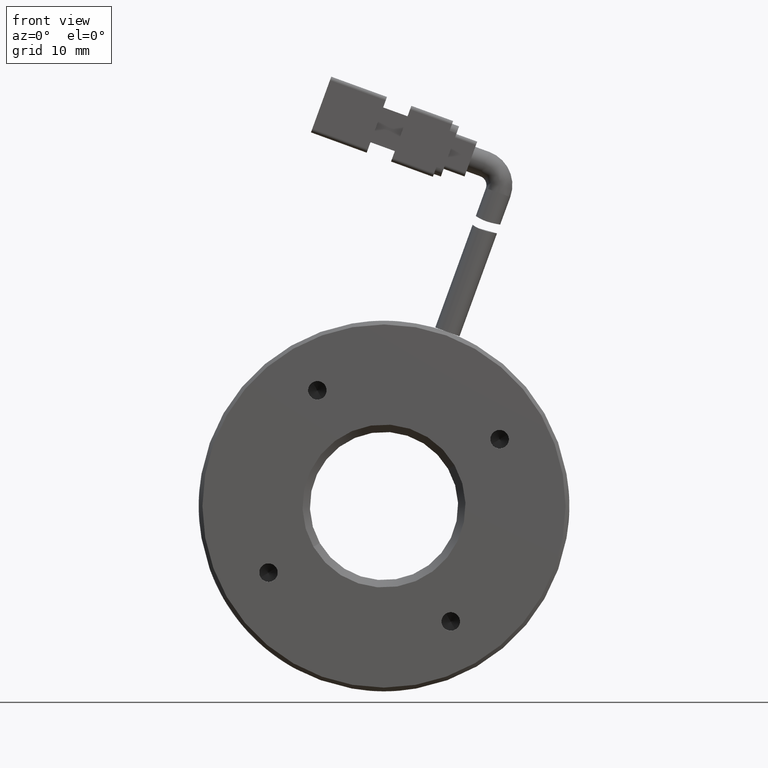
[diagram: clean part render]
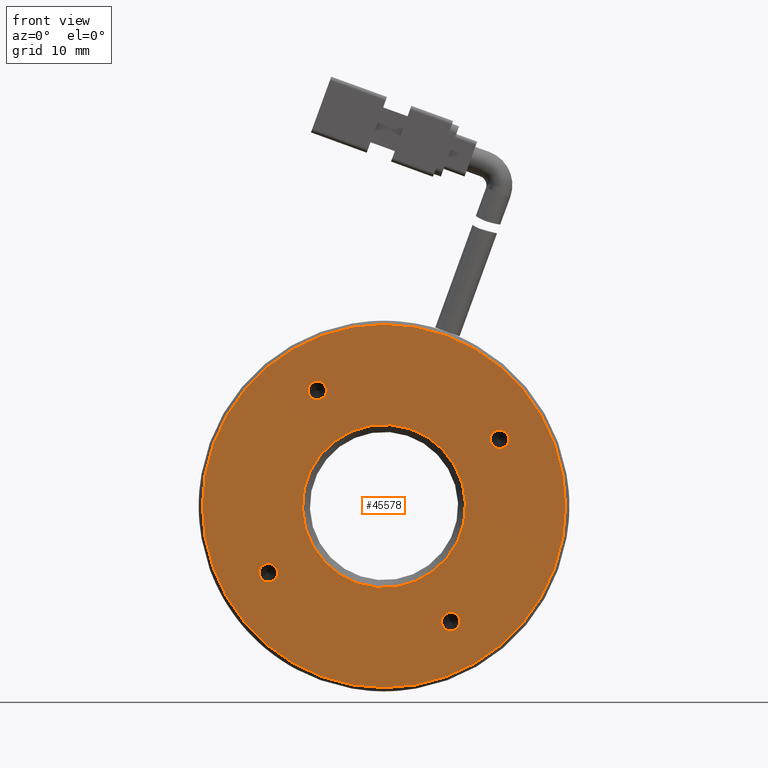
[diagram: same view with one face highlighted and labeled with its STEP entity id]
A machine part, front view. The second image highlights one B-rep face of the part: STEP entity #45578.
In plain terms, the highlighted planar face has unit normal (-0, 1, -0).
Its self-contained STEP definition (entity closure, byte-faithful):
#324 = ORIENTED_EDGE ( 'NONE', *, *, #24303, .F. ) ;
#420 = ORIENTED_EDGE ( 'NONE', *, *, #43122, .F. ) ;
#1035 = ORIENTED_EDGE ( 'NONE', *, *, #4142, .F. ) ;
#1561 = VERTEX_POINT ( 'NONE', #10363 ) ;
#1971 = FACE_BOUND ( 'NONE', #30187, .T. ) ;
#2028 = ORIENTED_EDGE ( 'NONE', *, *, #10139, .F. ) ;
#2528 = EDGE_CURVE ( 'NONE', #5474, #9628, #28810, .T. ) ;
#3006 = CIRCLE ( 'NONE', #32602, 24.50000000000002100 ) ;
#3188 = FACE_BOUND ( 'NONE', #28684, .T. ) ;
#3287 = CARTESIAN_POINT ( 'NONE',  ( -77.51289502036834700, 2.127531206657421200, 7.917468245269470000 ) ) ;
#3907 = CARTESIAN_POINT ( 'NONE',  ( -84.72635228848827200, 2.127531206657419000, -15.58845726811993300 ) ) ;
#4142 = EDGE_CURVE ( 'NONE', #1561, #46174, #15085, .T. ) ;
#4418 = DIRECTION ( 'NONE',  ( 1.692084345523365600E-017, -1.000000000000000000, -1.098056619398169000E-031 ) ) ;
#4481 = CARTESIAN_POINT ( 'NONE',  ( -84.72635228848827200, 2.127531206657419000, -15.58845726811993300 ) ) ;
#4590 = VERTEX_POINT ( 'NONE', #31199 ) ;
#4633 = DIRECTION ( 'NONE',  ( 0.8660254037844379300, 1.182766006347823100E-016, 0.5000000000000010000 ) ) ;
#5368 = ORIENTED_EDGE ( 'NONE', *, *, #41441, .F. ) ;
#5474 = VERTEX_POINT ( 'NONE', #35858 ) ;
#6059 = EDGE_CURVE ( 'NONE', #7541, #4590, #3006, .T. ) ;
#7257 = VERTEX_POINT ( 'NONE', #48879 ) ;
#7541 = VERTEX_POINT ( 'NONE', #41893 ) ;
#7832 = ORIENTED_EDGE ( 'NONE', *, *, #6059, .F. ) ;
#7913 = DIRECTION ( 'NONE',  ( 0.4999999999999997200, 0.0000000000000000000, -0.8660254037844387100 ) ) ;
#8261 = ORIENTED_EDGE ( 'NONE', *, *, #21530, .F. ) ;
#8456 = ORIENTED_EDGE ( 'NONE', *, *, #29947, .F. ) ;
#8848 = CIRCLE ( 'NONE', #25087, 1.250000000000000400 ) ;
#9557 = AXIS2_PLACEMENT_3D ( 'NONE', #15802, #43389, #19780 ) ;
#9571 = CARTESIAN_POINT ( 'NONE',  ( -109.3148095566081400, 2.127531206657417200, -9.000000000000035500 ) ) ;
#9628 = VERTEX_POINT ( 'NONE', #48232 ) ;
#9734 = DIRECTION ( 'NONE',  ( -1.295944383605204800E-016, 1.000000000000000000, -6.505213034913035200E-017 ) ) ;
#9773 = VERTEX_POINT ( 'NONE', #40059 ) ;
#10139 = EDGE_CURVE ( 'NONE', #24920, #39899, #8848, .T. ) ;
#10255 = AXIS2_PLACEMENT_3D ( 'NONE', #41406, #41399, #41282 ) ;
#10363 = CARTESIAN_POINT ( 'NONE',  ( -84.10135228848827200, 2.127531206657419000, -16.67098902285048100 ) ) ;
#12034 = CARTESIAN_POINT ( 'NONE',  ( -102.7263522884880900, 2.127531206657419000, 15.58845726811998800 ) ) ;
#12342 = ORIENTED_EDGE ( 'NONE', *, *, #43176, .F. ) ;
#12390 = EDGE_LOOP ( 'NONE', ( #37467, #7832 ) ) ;
#12750 = DIRECTION ( 'NONE',  ( 0.4999999999999997200, 0.0000000000000000000, -0.8660254037844387100 ) ) ;
#13470 = DIRECTION ( 'NONE',  ( 0.5000000000000002200, 0.0000000000000000000, -0.8660254037844383700 ) ) ;
#13687 = FACE_BOUND ( 'NONE', #22016, .T. ) ;
#14311 = CIRCLE ( 'NONE', #35003, 1.250000000000001800 ) ;
#14662 = AXIS2_PLACEMENT_3D ( 'NONE', #23191, #50512, #27244 ) ;
#14959 = EDGE_CURVE ( 'NONE', #9628, #5474, #49012, .T. ) ;
#15085 = CIRCLE ( 'NONE', #34561, 1.250000000000001800 ) ;
#15802 = CARTESIAN_POINT ( 'NONE',  ( -78.13789502036834700, 2.127531206657421200, 9.000000000000017800 ) ) ;
#15960 = DIRECTION ( 'NONE',  ( 0.5000000000000002200, 0.0000000000000000000, -0.8660254037844383700 ) ) ;
#16064 = AXIS2_PLACEMENT_3D ( 'NONE', #46845, #46786, #46684 ) ;
#16555 = CIRCLE ( 'NONE', #18946, 1.250000000000000400 ) ;
#17436 = AXIS2_PLACEMENT_3D ( 'NONE', #12034, #39688, #15960 ) ;
#18310 = CARTESIAN_POINT ( 'NONE',  ( -85.35135228848827200, 2.127531206657419000, -14.50592551338938400 ) ) ;
#18946 = AXIS2_PLACEMENT_3D ( 'NONE', #9571, #37233, #13470 ) ;
#19235 = AXIS2_PLACEMENT_3D ( 'NONE', #42931, #19309, #46760 ) ;
#19294 = DIRECTION ( 'NONE',  ( -0.8660254037844381500, -1.416100796715759600E-016, -0.5000000000000008900 ) ) ;
#19304 = DIRECTION ( 'NONE',  ( -1.295944383605204800E-016, 1.000000000000000000, -6.505213034913035200E-017 ) ) ;
#19309 = DIRECTION ( 'NONE',  ( -1.229783673277240500E-016, 1.000000000000000000, -6.123233995736756200E-017 ) ) ;
#19352 = CARTESIAN_POINT ( 'NONE',  ( -93.72635228848822900, 2.127531206657420300, -6.039006100744259700E-015 ) ) ;
#19780 = DIRECTION ( 'NONE',  ( 0.5000000000000002200, 0.0000000000000000000, -0.8660254037844383700 ) ) ;
#21203 = DIRECTION ( 'NONE',  ( 0.5000000000000002200, 0.0000000000000000000, -0.8660254037844383700 ) ) ;
#21273 = DIRECTION ( 'NONE',  ( 1.692084345523365600E-017, -1.000000000000000000, -1.098056619398169000E-031 ) ) ;
#21310 = CARTESIAN_POINT ( 'NONE',  ( -109.3148095566081400, 2.127531206657417200, -9.000000000000035500 ) ) ;
#21530 = EDGE_CURVE ( 'NONE', #7257, #9773, #40738, .T. ) ;
#22016 = EDGE_LOOP ( 'NONE', ( #324, #420 ) ) ;
#22988 = FACE_OUTER_BOUND ( 'NONE', #12390, .T. ) ;
#23191 = CARTESIAN_POINT ( 'NONE',  ( -78.13789502036834700, 2.127531206657421200, 9.000000000000017800 ) ) ;
#23550 = VERTEX_POINT ( 'NONE', #44925 ) ;
#24303 = EDGE_CURVE ( 'NONE', #39120, #23550, #45233, .T. ) ;
#24920 = VERTEX_POINT ( 'NONE', #46003 ) ;
#25087 = AXIS2_PLACEMENT_3D ( 'NONE', #21310, #21273, #21203 ) ;
#27244 = DIRECTION ( 'NONE',  ( 0.5000000000000002200, 0.0000000000000000000, -0.8660254037844383700 ) ) ;
#28684 = EDGE_LOOP ( 'NONE', ( #2028, #8456 ) ) ;
#28810 = CIRCLE ( 'NONE', #10255, 10.99999999999999800 ) ;
#29404 = CIRCLE ( 'NONE', #17436, 1.250000000000000400 ) ;
#29947 = EDGE_CURVE ( 'NONE', #39899, #24920, #16555, .T. ) ;
#30037 = AXIS2_PLACEMENT_3D ( 'NONE', #47080, #46744, #4633 ) ;
#30187 = EDGE_LOOP ( 'NONE', ( #1035, #5368 ) ) ;
#31199 = CARTESIAN_POINT ( 'NONE',  ( -114.9439746812069700, 2.127531206657417200, -12.25000000000003900 ) ) ;
#31645 = DIRECTION ( 'NONE',  ( 1.692084345523365600E-017, -1.000000000000000000, -1.098056619398169000E-031 ) ) ;
#31701 = EDGE_LOOP ( 'NONE', ( #32992, #43818 ) ) ;
#32130 = EDGE_LOOP ( 'NONE', ( #8261, #12342 ) ) ;
#32602 = AXIS2_PLACEMENT_3D ( 'NONE', #19352, #19304, #19294 ) ;
#32992 = ORIENTED_EDGE ( 'NONE', *, *, #14959, .F. ) ;
#33447 = CARTESIAN_POINT ( 'NONE',  ( -93.72635228848822900, 2.127531206657420300, -6.039006100744259700E-015 ) ) ;
#34444 = CIRCLE ( 'NONE', #45977, 24.50000000000002100 ) ;
#34561 = AXIS2_PLACEMENT_3D ( 'NONE', #4481, #4418, #12750 ) ;
#35003 = AXIS2_PLACEMENT_3D ( 'NONE', #3907, #31645, #7913 ) ;
#35683 = EDGE_CURVE ( 'NONE', #4590, #7541, #34444, .T. ) ;
#35858 = CARTESIAN_POINT ( 'NONE',  ( -103.2526317301170500, 2.127531206657415900, -5.500000000000015100 ) ) ;
#37233 = DIRECTION ( 'NONE',  ( 1.692084345523365600E-017, -1.000000000000000000, -1.098056619398169000E-031 ) ) ;
#37395 = DIRECTION ( 'NONE',  ( -0.8660254037844381500, -1.416100796715759600E-016, -0.5000000000000008900 ) ) ;
#37467 = ORIENTED_EDGE ( 'NONE', *, *, #35683, .F. ) ;
#39120 = VERTEX_POINT ( 'NONE', #3287 ) ;
#39371 = CARTESIAN_POINT ( 'NONE',  ( -109.9398095566081400, 2.127531206657417200, -7.917468245269487800 ) ) ;
#39688 = DIRECTION ( 'NONE',  ( 1.692084345523365600E-017, -1.000000000000000000, -1.098056619398169000E-031 ) ) ;
#39899 = VERTEX_POINT ( 'NONE', #39371 ) ;
#40059 = CARTESIAN_POINT ( 'NONE',  ( -103.3513522884880900, 2.127531206657419000, 16.67098902285053800 ) ) ;
#40738 = CIRCLE ( 'NONE', #16064, 1.250000000000000400 ) ;
#41282 = DIRECTION ( 'NONE',  ( 0.8660254037844379300, 1.182766006347823100E-016, 0.5000000000000010000 ) ) ;
#41399 = DIRECTION ( 'NONE',  ( 1.193513842782216900E-016, -1.000000000000000000, 5.913830031739125400E-017 ) ) ;
#41406 = CARTESIAN_POINT ( 'NONE',  ( -93.72635228848822900, 2.127531206657417200, -6.071532165918824800E-015 ) ) ;
#41441 = EDGE_CURVE ( 'NONE', #46174, #1561, #14311, .T. ) ;
#41893 = CARTESIAN_POINT ( 'NONE',  ( -72.50872989576949100, 2.127531206657423900, 12.25000000000002800 ) ) ;
#42594 = PLANE ( 'NONE',  #19235 ) ;
#42700 = FACE_BOUND ( 'NONE', #32130, .T. ) ;
#42931 = CARTESIAN_POINT ( 'NONE',  ( -72.07571719387726700, 2.127531206657423000, 12.50000000000002800 ) ) ;
#43122 = EDGE_CURVE ( 'NONE', #23550, #39120, #50040, .T. ) ;
#43176 = EDGE_CURVE ( 'NONE', #9773, #7257, #29404, .T. ) ;
#43389 = DIRECTION ( 'NONE',  ( 1.692084345523365600E-017, -1.000000000000000000, -1.098056619398169000E-031 ) ) ;
#43818 = ORIENTED_EDGE ( 'NONE', *, *, #2528, .F. ) ;
#43915 = FACE_BOUND ( 'NONE', #31701, .T. ) ;
#44925 = CARTESIAN_POINT ( 'NONE',  ( -78.76289502036834700, 2.127531206657421200, 10.08253175473056700 ) ) ;
#45233 = CIRCLE ( 'NONE', #14662, 1.250000000000000400 ) ;
#45578 = ADVANCED_FACE ( 'NONE', ( #43915, #22988, #13687, #1971, #3188, #42700 ), #42594, .F. ) ;
#45977 = AXIS2_PLACEMENT_3D ( 'NONE', #33447, #9734, #37395 ) ;
#46003 = CARTESIAN_POINT ( 'NONE',  ( -108.6898095566081400, 2.127531206657417200, -10.08253175473058300 ) ) ;
#46174 = VERTEX_POINT ( 'NONE', #18310 ) ;
#46684 = DIRECTION ( 'NONE',  ( 0.5000000000000002200, 0.0000000000000000000, -0.8660254037844383700 ) ) ;
#46744 = DIRECTION ( 'NONE',  ( 1.193513842782216900E-016, -1.000000000000000000, 5.913830031739125400E-017 ) ) ;
#46760 = DIRECTION ( 'NONE',  ( -0.8660254037844380400, -1.371185602004270100E-016, -0.5000000000000010000 ) ) ;
#46786 = DIRECTION ( 'NONE',  ( 1.692084345523365600E-017, -1.000000000000000000, -1.098056619398169000E-031 ) ) ;
#46845 = CARTESIAN_POINT ( 'NONE',  ( -102.7263522884880900, 2.127531206657419000, 15.58845726811998800 ) ) ;
#47080 = CARTESIAN_POINT ( 'NONE',  ( -93.72635228848822900, 2.127531206657417200, -6.071532165918824800E-015 ) ) ;
#48232 = CARTESIAN_POINT ( 'NONE',  ( -84.20007284685941300, 2.127531206657418600, 5.500000000000005300 ) ) ;
#48879 = CARTESIAN_POINT ( 'NONE',  ( -102.1013522884880900, 2.127531206657419000, 14.50592551338943900 ) ) ;
#49012 = CIRCLE ( 'NONE', #30037, 10.99999999999999800 ) ;
#50040 = CIRCLE ( 'NONE', #9557, 1.250000000000000400 ) ;
#50512 = DIRECTION ( 'NONE',  ( 1.692084345523365600E-017, -1.000000000000000000, -1.098056619398169000E-031 ) ) ;